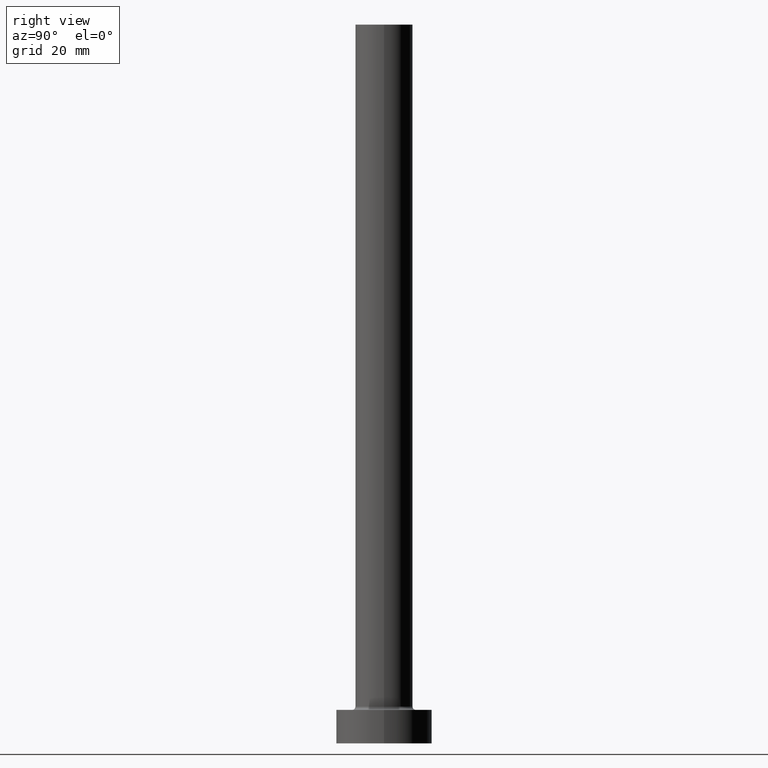
[diagram: clean part render]
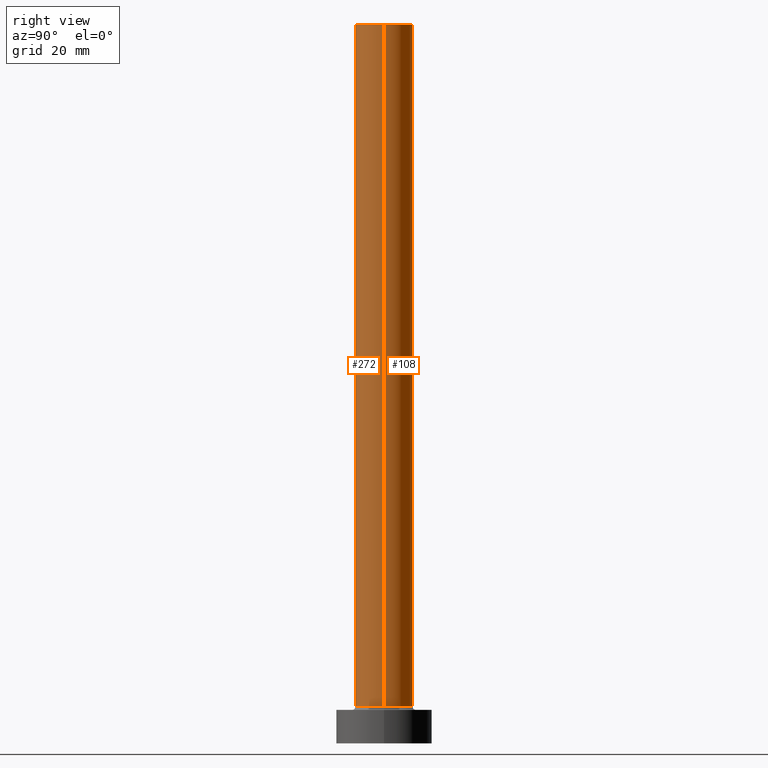
[diagram: same view with one multi-face feature highlighted, each face labeled with its STEP entity id]
A machine part, right view. The highlighted faces form ONE feature: a constant-radius fillet chain: 2 tangent blend faces with common blend radius 6 mm. The faces share edges in the B-rep.
Their STEP definitions:
[1] entity #108 (Cylinder):
#15 = ORIENTED_EDGE ( 'NONE', *, *, #88, .F. ) ;
#17 = CARTESIAN_POINT ( 'NONE',  ( 6.000000000000000888, 7.347880794884120722E-16, 150.0000000000000000 ) ) ;
#37 = CARTESIAN_POINT ( 'NONE',  ( 0.000000000000000000, 0.000000000000000000, 150.0000000000000000 ) ) ;
#52 = ORIENTED_EDGE ( 'NONE', *, *, #444, .T. ) ;
#74 = ORIENTED_EDGE ( 'NONE', *, *, #435, .T. ) ;
#80 = AXIS2_PLACEMENT_3D ( 'NONE', #129, #416, #199 ) ;
#81 = CARTESIAN_POINT ( 'NONE',  ( -6.000000000000000888, 0.000000000000000000, 150.0000000000000000 ) ) ;
#88 = EDGE_CURVE ( 'NONE', #406, #300, #325, .T. ) ;
#102 = LINE ( 'NONE', #375, #244 ) ;
#108 = ADVANCED_FACE ( 'NONE', ( #206 ), #455, .T. ) ;
#128 = VECTOR ( 'NONE', #402, 1000.000000000000000 ) ;
#129 = CARTESIAN_POINT ( 'NONE',  ( 0.000000000000000000, 0.000000000000000000, 7.700000000000012612 ) ) ;
#130 = CARTESIAN_POINT ( 'NONE',  ( -6.000000000000000888, 0.000000000000000000, 150.0000000000000000 ) ) ;
#132 = AXIS2_PLACEMENT_3D ( 'NONE', #381, #386, #247 ) ;
#136 = CARTESIAN_POINT ( 'NONE',  ( 6.000000000000000888, 7.347880794884120722E-16, 7.700000000000012612 ) ) ;
#166 = EDGE_CURVE ( 'NONE', #300, #191, #288, .T. ) ;
#172 = DIRECTION ( 'NONE',  ( -0.000000000000000000, -0.000000000000000000, -1.000000000000000000 ) ) ;
#191 = VERTEX_POINT ( 'NONE', #330 ) ;
#199 = DIRECTION ( 'NONE',  ( 1.000000000000000000, 0.000000000000000000, 0.000000000000000000 ) ) ;
#204 = ORIENTED_EDGE ( 'NONE', *, *, #166, .F. ) ;
#206 = FACE_OUTER_BOUND ( 'NONE', #252, .T. ) ;
#217 = CIRCLE ( 'NONE', #80, 6.000000000000000888 ) ;
#244 = VECTOR ( 'NONE', #312, 1000.000000000000000 ) ;
#247 = DIRECTION ( 'NONE',  ( 1.000000000000000000, 0.000000000000000000, 0.000000000000000000 ) ) ;
#252 = EDGE_LOOP ( 'NONE', ( #15, #52, #74, #204 ) ) ;
#288 = LINE ( 'NONE', #81, #128 ) ;
#300 = VERTEX_POINT ( 'NONE', #130 ) ;
#312 = DIRECTION ( 'NONE',  ( -0.000000000000000000, -0.000000000000000000, -1.000000000000000000 ) ) ;
#325 = CIRCLE ( 'NONE', #132, 6.000000000000000888 ) ;
#330 = CARTESIAN_POINT ( 'NONE',  ( -6.000000000000000888, 0.000000000000000000, 7.700000000000012612 ) ) ;
#365 = AXIS2_PLACEMENT_3D ( 'NONE', #37, #172, #458 ) ;
#375 = CARTESIAN_POINT ( 'NONE',  ( 6.000000000000000888, 7.347880794884120722E-16, 150.0000000000000000 ) ) ;
#381 = CARTESIAN_POINT ( 'NONE',  ( 0.000000000000000000, 0.000000000000000000, 150.0000000000000000 ) ) ;
#386 = DIRECTION ( 'NONE',  ( 0.000000000000000000, 0.000000000000000000, 1.000000000000000000 ) ) ;
#387 = VERTEX_POINT ( 'NONE', #136 ) ;
#402 = DIRECTION ( 'NONE',  ( -0.000000000000000000, -0.000000000000000000, -1.000000000000000000 ) ) ;
#406 = VERTEX_POINT ( 'NONE', #17 ) ;
#416 = DIRECTION ( 'NONE',  ( 0.000000000000000000, 0.000000000000000000, 1.000000000000000000 ) ) ;
#435 = EDGE_CURVE ( 'NONE', #387, #191, #217, .T. ) ;
#444 = EDGE_CURVE ( 'NONE', #406, #387, #102, .T. ) ;
#455 = CYLINDRICAL_SURFACE ( 'NONE', #365, 6.000000000000000888 ) ;
#458 = DIRECTION ( 'NONE',  ( -1.000000000000000000, 0.000000000000000000, 0.000000000000000000 ) ) ;
[2] entity #272 (Cylinder):
#17 = CARTESIAN_POINT ( 'NONE',  ( 6.000000000000000888, 7.347880794884120722E-16, 150.0000000000000000 ) ) ;
#62 = CARTESIAN_POINT ( 'NONE',  ( 0.000000000000000000, 0.000000000000000000, 7.700000000000012612 ) ) ;
#81 = CARTESIAN_POINT ( 'NONE',  ( -6.000000000000000888, 0.000000000000000000, 150.0000000000000000 ) ) ;
#86 = ORIENTED_EDGE ( 'NONE', *, *, #451, .T. ) ;
#102 = LINE ( 'NONE', #375, #244 ) ;
#105 = DIRECTION ( 'NONE',  ( 0.000000000000000000, 0.000000000000000000, 1.000000000000000000 ) ) ;
#125 = CIRCLE ( 'NONE', #274, 6.000000000000000888 ) ;
#128 = VECTOR ( 'NONE', #402, 1000.000000000000000 ) ;
#130 = CARTESIAN_POINT ( 'NONE',  ( -6.000000000000000888, 0.000000000000000000, 150.0000000000000000 ) ) ;
#136 = CARTESIAN_POINT ( 'NONE',  ( 6.000000000000000888, 7.347880794884120722E-16, 7.700000000000012612 ) ) ;
#146 = FACE_OUTER_BOUND ( 'NONE', #306, .T. ) ;
#166 = EDGE_CURVE ( 'NONE', #300, #191, #288, .T. ) ;
#191 = VERTEX_POINT ( 'NONE', #330 ) ;
#202 = ORIENTED_EDGE ( 'NONE', *, *, #444, .F. ) ;
#219 = CARTESIAN_POINT ( 'NONE',  ( 0.000000000000000000, 0.000000000000000000, 150.0000000000000000 ) ) ;
#236 = DIRECTION ( 'NONE',  ( 1.000000000000000000, 0.000000000000000000, 0.000000000000000000 ) ) ;
#242 = DIRECTION ( 'NONE',  ( 1.000000000000000000, 0.000000000000000000, 0.000000000000000000 ) ) ;
#244 = VECTOR ( 'NONE', #312, 1000.000000000000000 ) ;
#269 = ORIENTED_EDGE ( 'NONE', *, *, #418, .F. ) ;
#272 = ADVANCED_FACE ( 'NONE', ( #146 ), #285, .T. ) ;
#274 = AXIS2_PLACEMENT_3D ( 'NONE', #62, #105, #242 ) ;
#285 = CYLINDRICAL_SURFACE ( 'NONE', #304, 6.000000000000000888 ) ;
#288 = LINE ( 'NONE', #81, #128 ) ;
#300 = VERTEX_POINT ( 'NONE', #130 ) ;
#304 = AXIS2_PLACEMENT_3D ( 'NONE', #219, #360, #371 ) ;
#305 = CARTESIAN_POINT ( 'NONE',  ( 0.000000000000000000, 0.000000000000000000, 150.0000000000000000 ) ) ;
#306 = EDGE_LOOP ( 'NONE', ( #202, #269, #393, #86 ) ) ;
#309 = CIRCLE ( 'NONE', #317, 6.000000000000000888 ) ;
#312 = DIRECTION ( 'NONE',  ( -0.000000000000000000, -0.000000000000000000, -1.000000000000000000 ) ) ;
#317 = AXIS2_PLACEMENT_3D ( 'NONE', #305, #449, #236 ) ;
#330 = CARTESIAN_POINT ( 'NONE',  ( -6.000000000000000888, 0.000000000000000000, 7.700000000000012612 ) ) ;
#360 = DIRECTION ( 'NONE',  ( -0.000000000000000000, -0.000000000000000000, -1.000000000000000000 ) ) ;
#371 = DIRECTION ( 'NONE',  ( -1.000000000000000000, 0.000000000000000000, 0.000000000000000000 ) ) ;
#375 = CARTESIAN_POINT ( 'NONE',  ( 6.000000000000000888, 7.347880794884120722E-16, 150.0000000000000000 ) ) ;
#387 = VERTEX_POINT ( 'NONE', #136 ) ;
#393 = ORIENTED_EDGE ( 'NONE', *, *, #166, .T. ) ;
#402 = DIRECTION ( 'NONE',  ( -0.000000000000000000, -0.000000000000000000, -1.000000000000000000 ) ) ;
#406 = VERTEX_POINT ( 'NONE', #17 ) ;
#418 = EDGE_CURVE ( 'NONE', #300, #406, #309, .T. ) ;
#444 = EDGE_CURVE ( 'NONE', #406, #387, #102, .T. ) ;
#449 = DIRECTION ( 'NONE',  ( 0.000000000000000000, 0.000000000000000000, 1.000000000000000000 ) ) ;
#451 = EDGE_CURVE ( 'NONE', #191, #387, #125, .T. ) ;